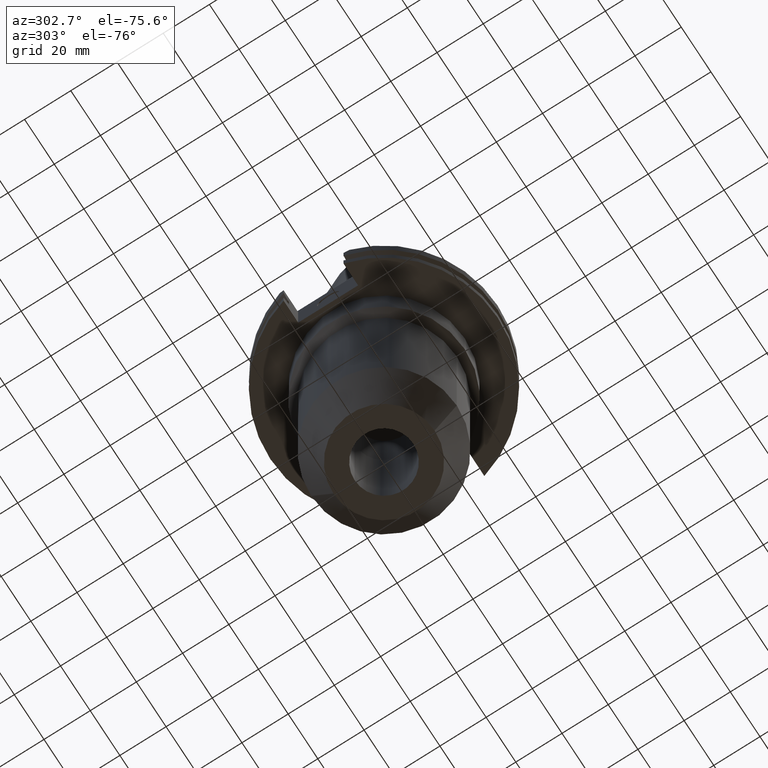
[diagram: clean part render]
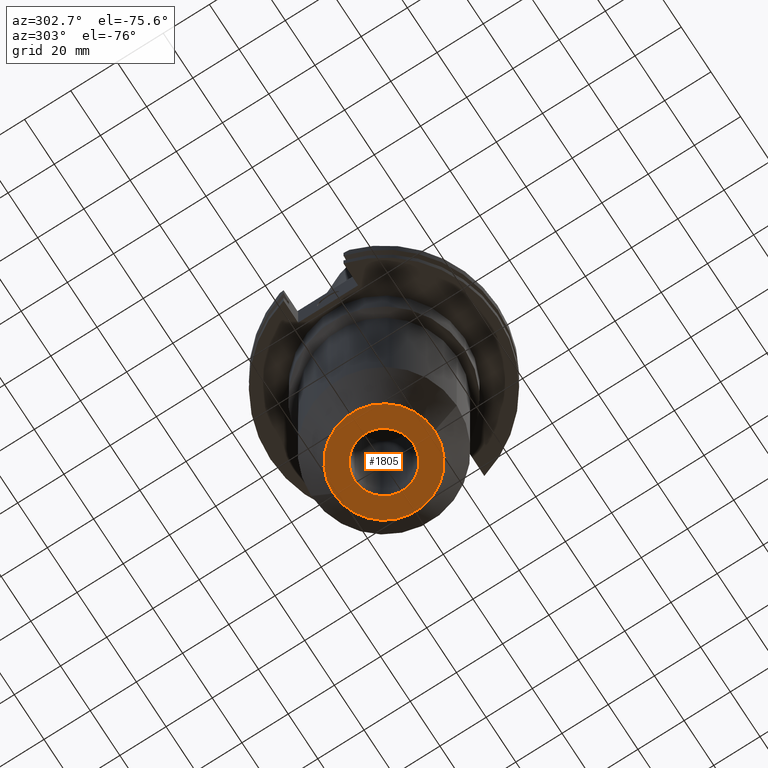
[diagram: same view with one face highlighted and labeled with its STEP entity id]
A machine part, auxiliary view. The second image highlights one B-rep face of the part: STEP entity #1805.
In plain terms, the highlighted planar face has unit normal (0, 0, -1).
Its self-contained STEP definition (entity closure, byte-faithful):
#354=CARTESIAN_POINT('',(0.E0,0.E0,-1.27E2));
#355=DIRECTION('',(0.E0,0.E0,1.E0));
#356=DIRECTION('',(0.E0,-1.E0,0.E0));
#357=AXIS2_PLACEMENT_3D('',#354,#355,#356);
#362=CARTESIAN_POINT('',(0.E0,0.E0,-1.27E2));
#363=DIRECTION('',(0.E0,0.E0,1.E0));
#364=DIRECTION('',(0.E0,1.E0,0.E0));
#365=AXIS2_PLACEMENT_3D('',#362,#363,#364);
#370=CARTESIAN_POINT('',(0.E0,2.608865076224E-14,-1.27E2));
#371=DIRECTION('',(0.E0,0.E0,-1.E0));
#372=DIRECTION('',(0.E0,-1.E0,0.E0));
#373=AXIS2_PLACEMENT_3D('',#370,#371,#372);
#378=CARTESIAN_POINT('',(0.E0,2.608865076224E-14,-1.27E2));
#379=DIRECTION('',(0.E0,0.E0,-1.E0));
#380=DIRECTION('',(0.E0,1.E0,0.E0));
#381=AXIS2_PLACEMENT_3D('',#378,#379,#380);
#1314=CARTESIAN_POINT('',(0.E0,1.27E1,-1.27E2));
#1315=VERTEX_POINT('',#1314);
#1316=CARTESIAN_POINT('',(0.E0,-1.27E1,-1.27E2));
#1317=VERTEX_POINT('',#1316);
#1318=CARTESIAN_POINT('',(0.E0,-2.1909E1,-1.27E2));
#1319=CARTESIAN_POINT('',(0.E0,2.1909E1,-1.27E2));
#1320=VERTEX_POINT('',#1318);
#1321=VERTEX_POINT('',#1319);
#1790=CARTESIAN_POINT('',(0.E0,0.E0,-1.27E2));
#1791=DIRECTION('',(0.E0,0.E0,-1.E0));
#1792=DIRECTION('',(0.E0,-1.E0,0.E0));
#1793=AXIS2_PLACEMENT_3D('',#1790,#1791,#1792);
#1794=PLANE('',#1793);
#1796=ORIENTED_EDGE('',*,*,#1795,.T.);
#1798=ORIENTED_EDGE('',*,*,#1797,.T.);
#1799=EDGE_LOOP('',(#1796,#1798));
#1800=FACE_OUTER_BOUND('',#1799,.F.);
#1801=ORIENTED_EDGE('',*,*,#1783,.T.);
#1802=ORIENTED_EDGE('',*,*,#1772,.T.);
#1803=EDGE_LOOP('',(#1801,#1802));
#1804=FACE_BOUND('',#1803,.F.);
#358=CIRCLE('',#357,2.1909E1);
#366=CIRCLE('',#365,2.1909E1);
#374=CIRCLE('',#373,1.27E1);
#382=CIRCLE('',#381,1.27E1);
#1772=EDGE_CURVE('',#1315,#1317,#382,.T.);
#1783=EDGE_CURVE('',#1317,#1315,#374,.T.);
#1795=EDGE_CURVE('',#1320,#1321,#358,.T.);
#1797=EDGE_CURVE('',#1321,#1320,#366,.T.);
#1805=ADVANCED_FACE('',(#1800,#1804),#1794,.T.);